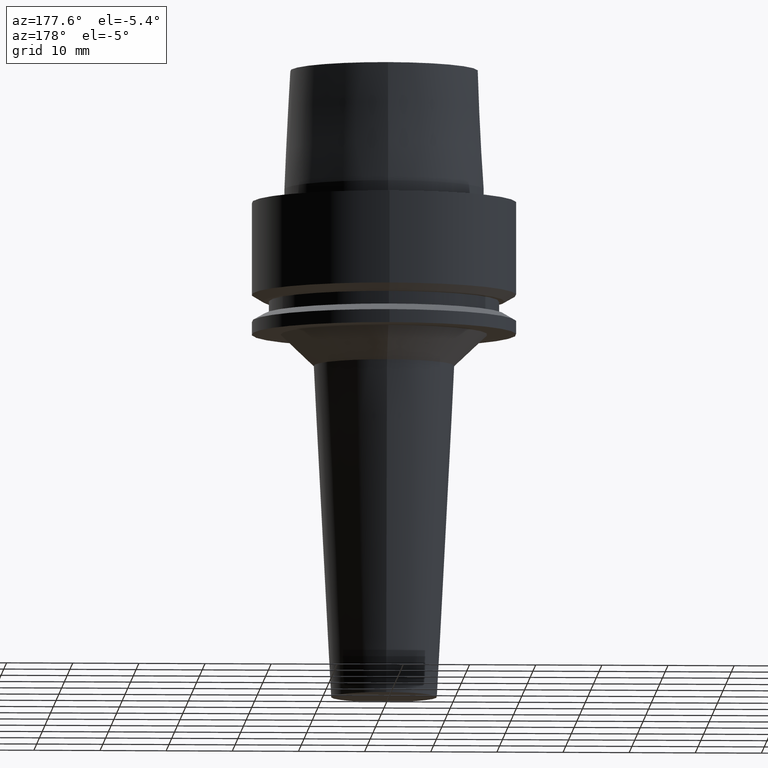
[diagram: clean part render]
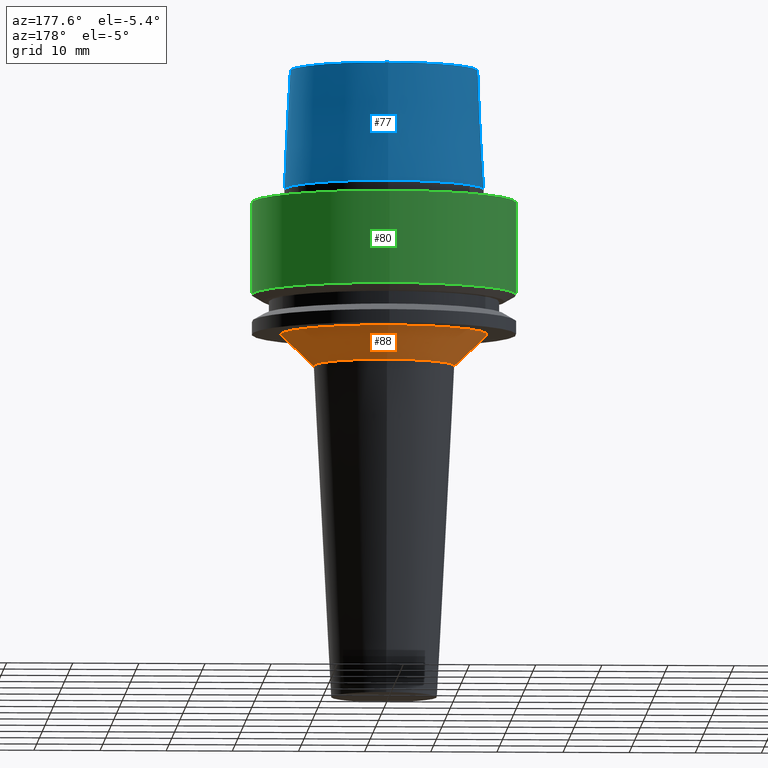
[diagram: same view with three faces highlighted in distinct colors, each labeled with its STEP entity id]
A machine part, auxiliary view with three faces highlighted in distinct colors.
Their STEP definitions:

[orange] entity #88 — the highlighted conical surface has half-angle 46.5 deg.
#88=ADVANCED_FACE('',(#128,#129),#130,.T.);
#128=FACE_BOUND('',#171,.T.);
#129=FACE_BOUND('',#172,.T.);
#130=CONICAL_SURFACE('',#173,13.1306768551322,0.811578102177363);
#171=EDGE_LOOP('',(#240));
#172=EDGE_LOOP('',(#241));
#173=AXIS2_PLACEMENT_3D('',#242,#243,#244);
#240=ORIENTED_EDGE('',*,*,#263,.F.);
#241=ORIENTED_EDGE('',*,*,#262,.T.);
#242=CARTESIAN_POINT('',(1.36971601626182E-015,2.73943203252364E-015,-22.369160107477));
#243=DIRECTION('',(-6.12323399573677E-017,-1.22464679914735E-016,1.0));
#244=DIRECTION('',(-1.23259516440783E-032,1.0,1.22464679914735E-016));
#262=EDGE_CURVE('',#288,#288,#289,.T.);
#263=EDGE_CURVE('',#290,#290,#291,.T.);
#288=VERTEX_POINT('',#316);
#289=CIRCLE('',#317,15.62725069);
#290=VERTEX_POINT('',#318);
#291=CIRCLE('',#319,10.6341030202644);
#316=CARTESIAN_POINT('',(1.22464679914735E-015,15.62725069,-20.0));
#317=AXIS2_PLACEMENT_3D('',#356,#357,#358);
#318=CARTESIAN_POINT('',(1.51478523337628E-015,10.6341030202644,-24.738320214954));
#319=AXIS2_PLACEMENT_3D('',#359,#360,#361);
#356=CARTESIAN_POINT('',(1.22464679914735E-015,2.44929359829471E-015,-20.0));
#357=DIRECTION('',(6.12323399573677E-017,1.22464679914735E-016,-1.0));
#358=DIRECTION('',(-1.23259516440783E-032,1.0,1.22464679914735E-016));
#359=CARTESIAN_POINT('',(1.51478523337628E-015,3.02957046675257E-015,-24.738320214954));
#360=DIRECTION('',(6.12323399573677E-017,1.22464679914735E-016,-1.0));
#361=DIRECTION('',(-1.23259516440783E-032,1.0,1.22464679914735E-016));

[blue] entity #77 — the highlighted conical surface has half-angle 2.862 deg.
#77=ADVANCED_FACE('',(#95,#96),#97,.T.);
#95=FACE_BOUND('',#138,.T.);
#96=FACE_BOUND('',#139,.T.);
#97=CONICAL_SURFACE('',#140,14.65,0.0499583957219411);
#138=EDGE_LOOP('',(#185));
#139=EDGE_LOOP('',(#186));
#140=AXIS2_PLACEMENT_3D('',#187,#188,#189);
#185=ORIENTED_EDGE('',*,*,#252,.F.);
#186=ORIENTED_EDGE('',*,*,#251,.T.);
#187=CARTESIAN_POINT('',(-6.73555739531044E-016,-1.34711147906209E-015,11.0));
#188=DIRECTION('',(6.12323399573677E-017,1.22464679914735E-016,-1.0));
#189=DIRECTION('',(-1.23259516440783E-032,1.0,1.22464679914735E-016));
#251=EDGE_CURVE('',#266,#266,#267,.T.);
#252=EDGE_CURVE('',#268,#268,#269,.T.);
#266=VERTEX_POINT('',#294);
#267=CIRCLE('',#295,14.2);
#268=VERTEX_POINT('',#296);
#269=CIRCLE('',#297,15.1);
#294=CARTESIAN_POINT('',(-1.22464679914735E-015,14.2,20.0));
#295=AXIS2_PLACEMENT_3D('',#323,#324,#325);
#296=CARTESIAN_POINT('',(-1.22464679914736E-016,15.1,2.0));
#297=AXIS2_PLACEMENT_3D('',#326,#327,#328);
#323=CARTESIAN_POINT('',(-1.22464679914735E-015,-2.44929359829471E-015,20.0));
#324=DIRECTION('',(6.12323399573677E-017,1.22464679914735E-016,-1.0));
#325=DIRECTION('',(-1.23259516440783E-032,1.0,1.22464679914735E-016));
#326=CARTESIAN_POINT('',(-1.22464679914735E-016,-2.44929359829471E-016,2.0));
#327=DIRECTION('',(6.12323399573677E-017,1.22464679914735E-016,-1.0));
#328=DIRECTION('',(-1.23259516440783E-032,1.0,1.22464679914735E-016));

[green] entity #80 — the highlighted cylindrical surface (bore or boss wall) has radius 20 mm, axis along (-0, -0, 1).
#80=ADVANCED_FACE('',(#104,#105),#106,.T.);
#104=FACE_BOUND('',#147,.T.);
#105=FACE_BOUND('',#148,.T.);
#106=CYLINDRICAL_SURFACE('',#149,20.0);
#147=EDGE_LOOP('',(#200));
#148=EDGE_LOOP('',(#201));
#149=AXIS2_PLACEMENT_3D('',#202,#203,#204);
#200=ORIENTED_EDGE('',*,*,#255,.F.);
#201=ORIENTED_EDGE('',*,*,#254,.T.);
#202=CARTESIAN_POINT('',(4.27991830799565E-016,8.55983661599131E-016,-6.98963703));
#203=DIRECTION('',(-6.12323399573677E-017,-1.22464679914735E-016,1.0));
#204=DIRECTION('',(-1.23259516440783E-032,1.0,1.22464679914735E-016));
#254=EDGE_CURVE('',#272,#272,#273,.T.);
#255=EDGE_CURVE('',#274,#274,#275,.T.);
#272=VERTEX_POINT('',#300);
#273=CIRCLE('',#301,20.0);
#274=VERTEX_POINT('',#302);
#275=CIRCLE('',#303,20.0);
#300=CARTESIAN_POINT('',(-2.46519032881566E-031,20.0,2.44929359829471E-015));
#301=AXIS2_PLACEMENT_3D('',#332,#333,#334);
#302=CARTESIAN_POINT('',(8.55983661599131E-016,20.0,-13.97927406));
#303=AXIS2_PLACEMENT_3D('',#335,#336,#337);
#332=CARTESIAN_POINT('',(0.0,0.0,0.0));
#333=DIRECTION('',(6.12323399573677E-017,1.22464679914735E-016,-1.0));
#334=DIRECTION('',(-1.23259516440783E-032,1.0,1.22464679914735E-016));
#335=CARTESIAN_POINT('',(8.55983661599131E-016,1.71196732319826E-015,-13.97927406));
#336=DIRECTION('',(6.12323399573677E-017,1.22464679914735E-016,-1.0));
#337=DIRECTION('',(-1.23259516440783E-032,1.0,1.22464679914735E-016));